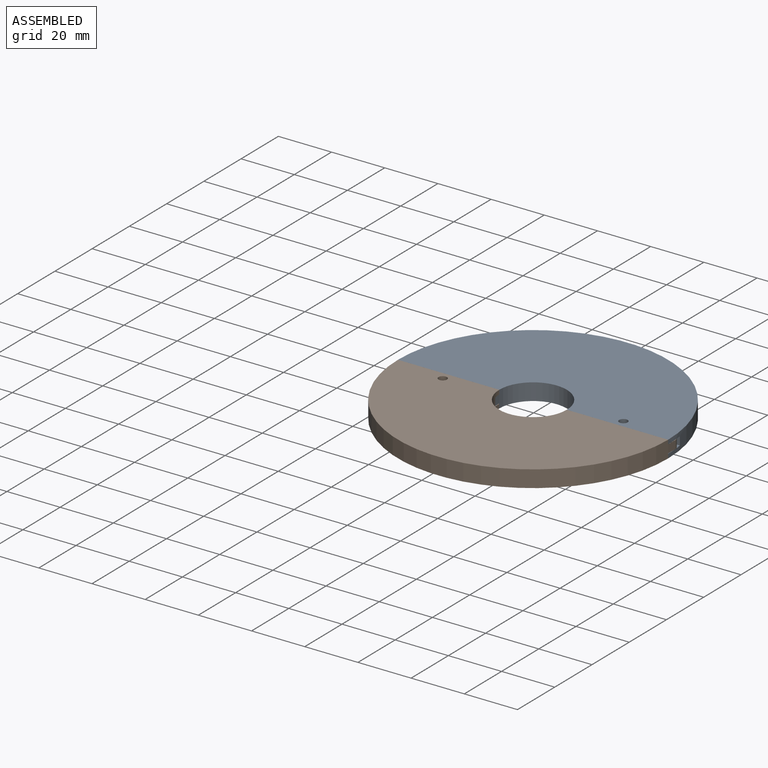
[diagram: assembled view]
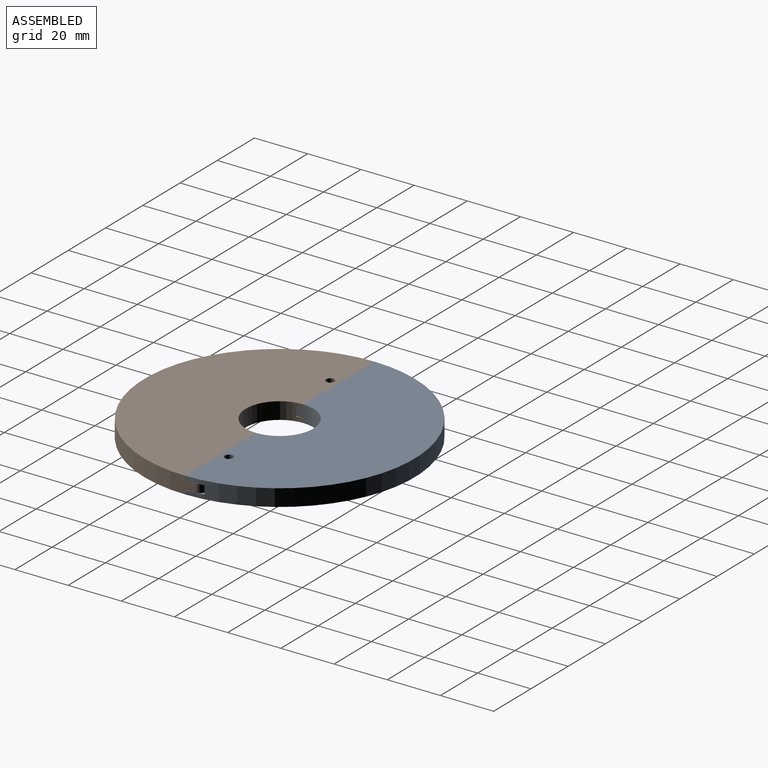
[diagram: assembled view, second angle]
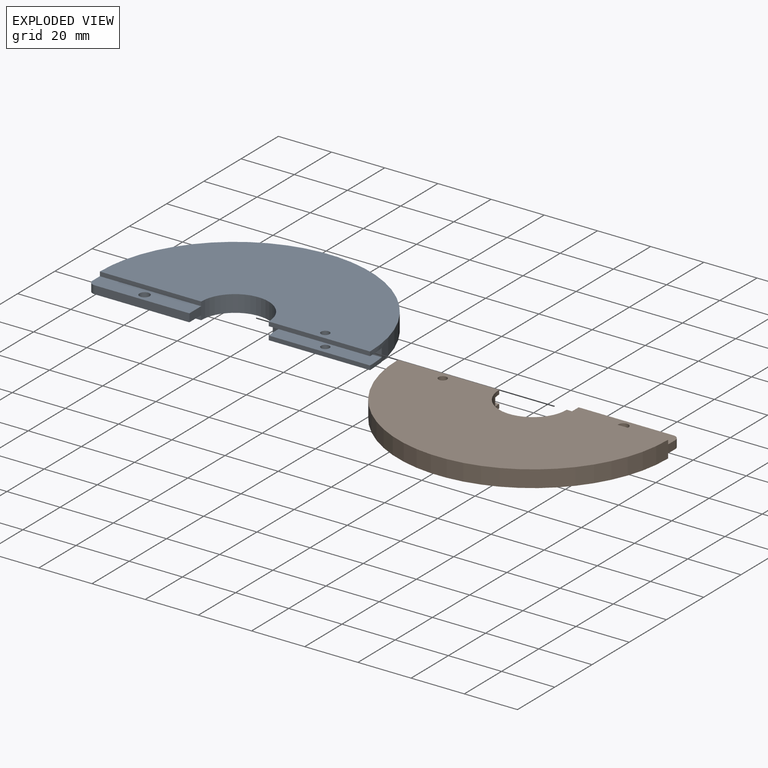
[diagram: exploded view]
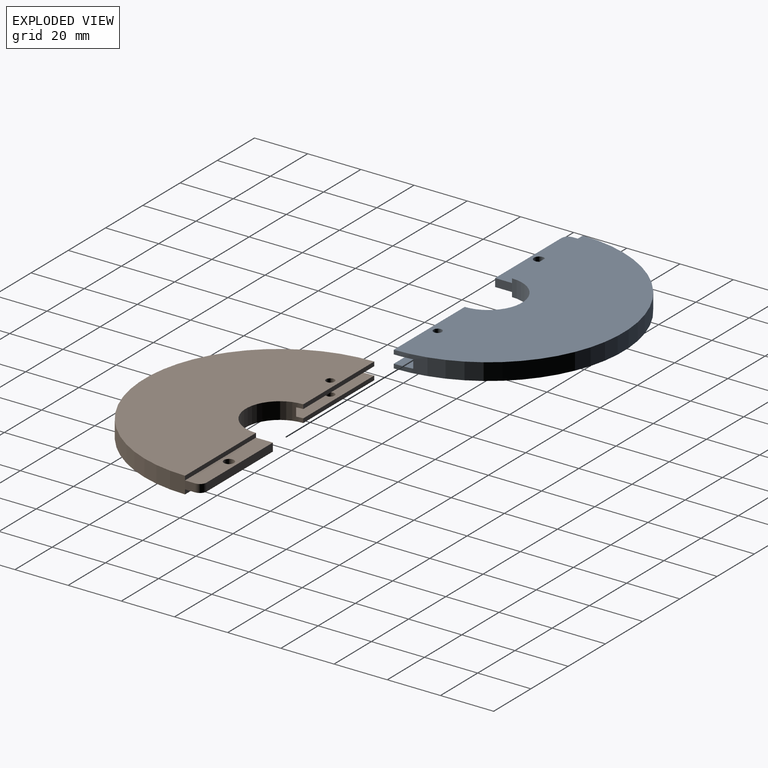
[diagram: exploded view, second angle]
ASSEMBLY  parts=2 mates=2
PART A: 21 faces, bbox 101.6x57.2x6.4 mm
  f0: plane 38.1x1.59mm, normal (0,1,0), area 60.5mm2, adj f1,f2,f7,f14
  f1: cylinder r=12.7mm len=25.4mm, axis (0,0,-1), area 245.3mm2, adj f0,f3,f4,f5,f6,f7,f8,f13
  f2: cylinder r=50.8mm len=101.6mm, axis (0,0,-1), area 991.2mm2, adj f0,f3,f4,f5,f6,f7,f10,f13
  f3: plane 38.1x1.71mm, normal (0,1,0), area 65.1mm2, adj f1,f2,f7,f11
  f4: plane 38.1x1.59mm, normal (0,1,0), area 60.5mm2, adj f1,f2,f6,f13
  f5: plane 38.1x1.59mm, normal (0,1,0), area 60.7mm2, adj f1,f2,f6,f9
  f6: plane 101.6x50.8mm, normal (0,0,1), area 3792.4mm2, adj f1,f2,f4,f5,f19
  f7: plane 101.6x50.8mm, normal (0,0,-1), area 3792.4mm2, adj f0,f1,f2,f3,f18
  f8: plane 6.35x3.05mm, normal (-1,0,0), area 19.4mm2, adj f1,f9,f11,f12
  f9: plane 38.1x6.35mm, normal (0,0,1), area 229.1mm2, adj f5,f8,f10,f12,f17,f20
  f10: plane 3.81x3.05mm, normal (1,0,0), area 11.6mm2, adj f2,f9,f11,f20
  f11: plane 38.1x6.35mm, normal (0,0,-1), area 229.1mm2, adj f3,f8,f10,f12,f17,f20
  f12: plane 35.56x3.05mm, normal (0,1,0), area 108.4mm2, adj f8,f9,f11,f20
  f13: plane 38.35x6.99mm, normal (0,0,-1), area 258.4mm2, adj f1,f2,f4,f15,f16,f19
  f14: plane 38.35x6.99mm, normal (0,0,1), area 258.4mm2, adj f0,f1,f2,f15,f16,f18
  f15: plane 37.87x3.18mm, normal (0,1,0), area 120.2mm2, adj f2,f13,f14,f16
  f16: plane 4.46x3.18mm, normal (-1,0,0), area 14.2mm2, adj f1,f13,f14,f15
  f17: cylinder r=1.91mm len=3.81mm, axis (0,0,1), area 36.5mm2, adj f9,f11
  f18: cylinder r=1.59mm len=3.18mm, axis (0,0,1), area 15.8mm2, adj f7,f14
  f19: cylinder r=1.59mm len=3.18mm, axis (0,0,1), area 15.8mm2, adj f6,f13
  f20: cylinder r=2.54mm len=3.05mm, axis (0,0,1), area 12.2mm2, adj f9,f10,f11,f12
PART B: same geometry as A
PLACE A rot(axis=(0,0,1),180deg) t=(0.78,-29.94,2.08)mm
PLACE B t=(0.78,-29.94,2.08)mm
MATE cylindrical A.f1 <-> B.f1  axis (0,0,-1) through (0.78,-29.94,2.08)mm
MATE fastened A.f5 <-> B.f4  axis (0,-1,0) through (-30.97,-29.94,7.64)mm
